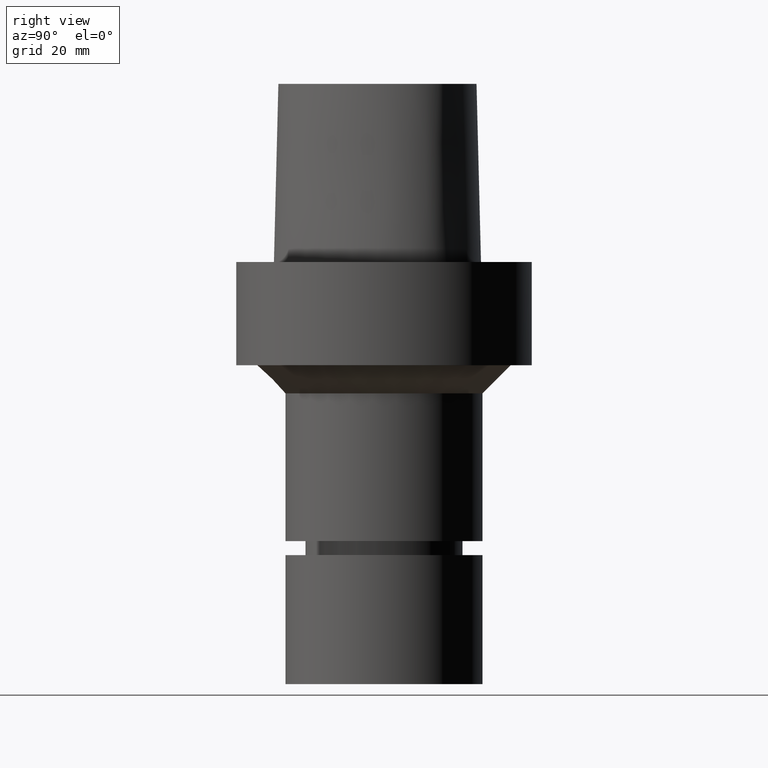
[diagram: clean part render]
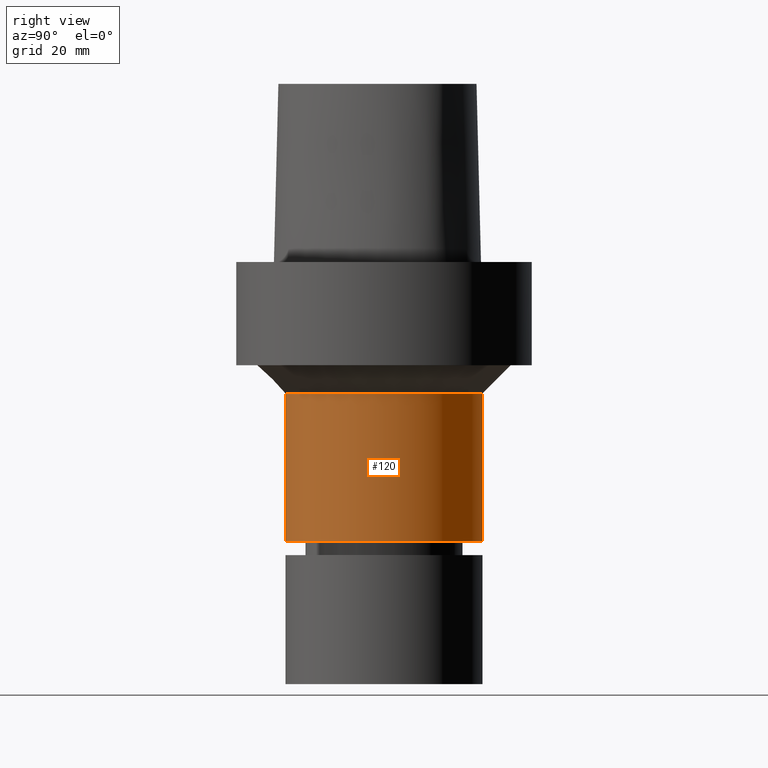
[diagram: same view with one face highlighted and labeled with its STEP entity id]
A machine part, right view. The second image highlights one B-rep face of the part: STEP entity #120.
In plain terms, the highlighted cylindrical surface (bore or boss wall) has radius 21 mm, axis along (0, 0, -1).
Its self-contained STEP definition (entity closure, byte-faithful):
#120=ADVANCED_FACE('Unnamed[1]',(#262,#263),#264,.T.);
#122=EDGE_CURVE('Unnamed[1]',#266,#266,#267,.T.);
#138=EDGE_CURVE('Unnamed[1]',#286,#286,#287,.T.);
#262=FACE_BOUND('',#609,.T.);
#263=FACE_BOUND('',#610,.T.);
#264=CYLINDRICAL_SURFACE('',#611,21.0000000000001);
#266=VERTEX_POINT('',#614);
#267=CIRCLE('',#615,21.0000000000001);
#286=VERTEX_POINT('',#673);
#287=CIRCLE('',#674,21.0);
#609=EDGE_LOOP('',(#809));
#610=EDGE_LOOP('',(#810));
#611=AXIS2_PLACEMENT_3D('',#811,#812,#813);
#614=CARTESIAN_POINT('',(3.64332422746337E-015,21.0000000000001,-59.5));
#615=AXIS2_PLACEMENT_3D('',#814,#815,#816);
#673=CARTESIAN_POINT('',(1.71450551880633E-015,21.0,-28.0000000000005));
#674=AXIS2_PLACEMENT_3D('',#828,#829,#830);
#809=ORIENTED_EDGE('',*,*,#122,.F.);
#810=ORIENTED_EDGE('',*,*,#138,.T.);
#811=CARTESIAN_POINT('',(2.67891487313485E-015,5.3578297462697E-015,-43.7500000000002));
#812=DIRECTION('',(6.12323399573677E-017,1.22464679914735E-016,-1.0));
#813=DIRECTION('',(-1.23259516440783E-032,1.0,1.22464679914735E-016));
#814=CARTESIAN_POINT('',(3.64332422746337E-015,7.28664845492674E-015,-59.5));
#815=DIRECTION('',(6.12323399573677E-017,1.22464679914735E-016,-1.0));
#816=DIRECTION('',(-1.23259516440783E-032,1.0,1.22464679914735E-016));
#828=CARTESIAN_POINT('',(1.71450551880633E-015,3.42901103761266E-015,-28.0000000000006));
#829=DIRECTION('',(6.12323399573677E-017,1.22464679914735E-016,-1.0));
#830=DIRECTION('',(-1.23259516440783E-032,1.0,1.22464679914735E-016));